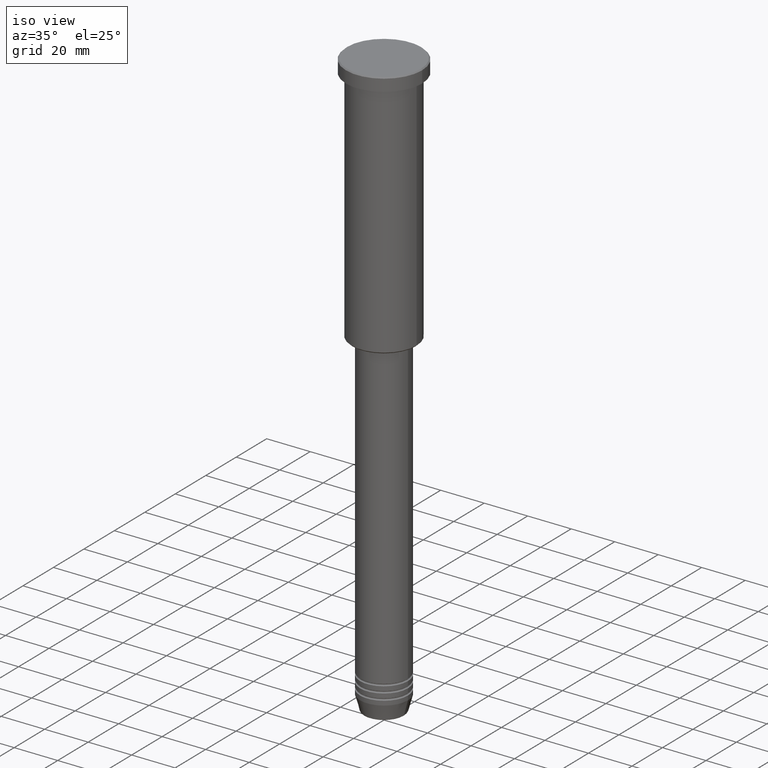
[diagram: clean part render]
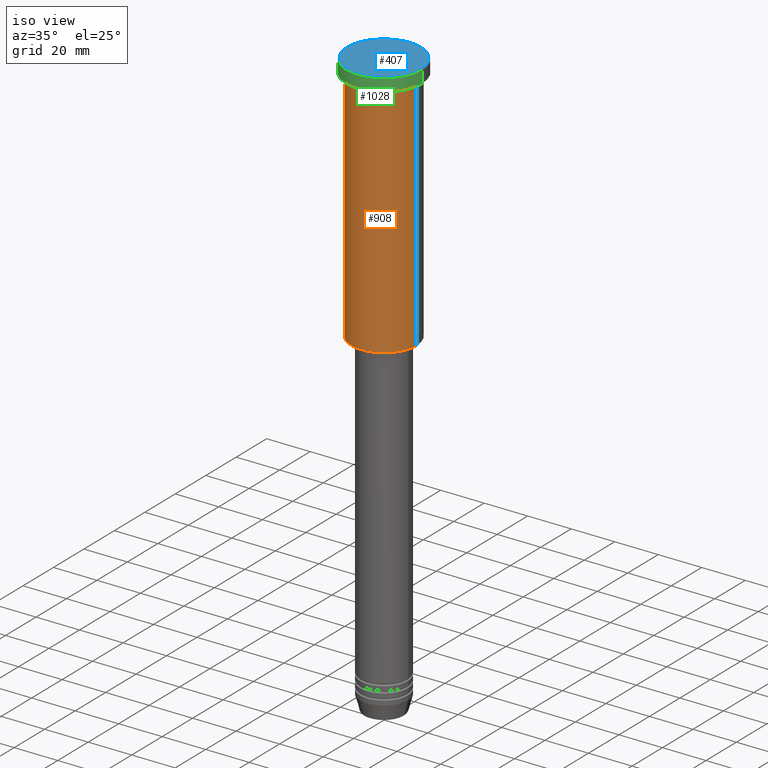
[diagram: same view with three faces highlighted in distinct colors, each labeled with its STEP entity id]
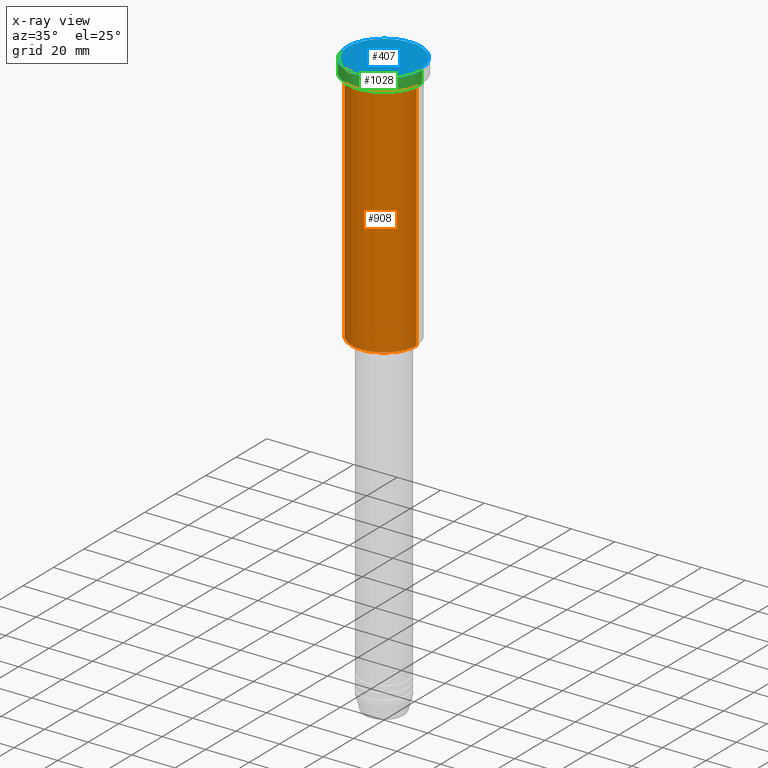
[diagram: x-ray of the same camera — body ghosted, the three highlighted faces saturated]
A machine part, iso view with three faces highlighted in distinct colors.
The next image is the same camera in x-ray (body ghosted, the three faces saturated) — at least one of them is partly hidden behind the body in this view.
Their STEP definitions:

[orange] entity #908 — the highlighted cylindrical surface (partial cylindrical patch) has radius 15 mm, axis along (-0, -0, 1).
#23 = VECTOR ( 'NONE', #1132, 1000.000000000000000 ) ;
#26 = EDGE_CURVE ( 'NONE', #639, #1170, #681, .T. ) ;
#51 = LINE ( 'NONE', #499, #23 ) ;
#58 = VECTOR ( 'NONE', #595, 1000.000000000000000 ) ;
#93 = DIRECTION ( 'NONE',  ( -0.000000000000000000, -0.000000000000000000, 1.000000000000000000 ) ) ;
#111 = CARTESIAN_POINT ( 'NONE',  ( 0.000000000000000000, 0.000000000000000000, 0.000000000000000000 ) ) ;
#138 = CIRCLE ( 'NONE', #992, 15.00000000000000000 ) ;
#172 = DIRECTION ( 'NONE',  ( -1.000000000000000000, 0.000000000000000000, 0.000000000000000000 ) ) ;
#211 = ORIENTED_EDGE ( 'NONE', *, *, #679, .T. ) ;
#221 = ORIENTED_EDGE ( 'NONE', *, *, #26, .T. ) ;
#384 = DIRECTION ( 'NONE',  ( 1.000000000000000000, 0.000000000000000000, 0.000000000000000000 ) ) ;
#412 = CARTESIAN_POINT ( 'NONE',  ( 15.00000000000000000, 0.000000000000000000, -6.999999999999995559 ) ) ;
#424 = AXIS2_PLACEMENT_3D ( 'NONE', #111, #476, #622 ) ;
#457 = DIRECTION ( 'NONE',  ( -0.000000000000000000, -0.000000000000000000, 1.000000000000000000 ) ) ;
#462 = CIRCLE ( 'NONE', #516, 15.00000000000000000 ) ;
#476 = DIRECTION ( 'NONE',  ( -0.000000000000000000, -0.000000000000000000, 1.000000000000000000 ) ) ;
#483 = FACE_OUTER_BOUND ( 'NONE', #769, .T. ) ;
#499 = CARTESIAN_POINT ( 'NONE',  ( -15.00000000000000000, 1.836970198721029589E-15, 0.000000000000000000 ) ) ;
#516 = AXIS2_PLACEMENT_3D ( 'NONE', #553, #457, #172 ) ;
#518 = CARTESIAN_POINT ( 'NONE',  ( 15.00000000000000000, 0.000000000000000000, 0.000000000000000000 ) ) ;
#553 = CARTESIAN_POINT ( 'NONE',  ( 0.000000000000000000, 0.000000000000000000, -115.5000000000000853 ) ) ;
#595 = DIRECTION ( 'NONE',  ( -0.000000000000000000, -0.000000000000000000, 1.000000000000000000 ) ) ;
#601 = ORIENTED_EDGE ( 'NONE', *, *, #1080, .F. ) ;
#622 = DIRECTION ( 'NONE',  ( 1.000000000000000000, 0.000000000000000000, 0.000000000000000000 ) ) ;
#639 = VERTEX_POINT ( 'NONE', #886 ) ;
#646 = CARTESIAN_POINT ( 'NONE',  ( -15.00000000000000000, 1.836970198721029589E-15, -6.999999999999995559 ) ) ;
#679 = EDGE_CURVE ( 'NONE', #832, #639, #462, .T. ) ;
#681 = LINE ( 'NONE', #518, #58 ) ;
#769 = EDGE_LOOP ( 'NONE', ( #837, #211, #221, #601 ) ) ;
#832 = VERTEX_POINT ( 'NONE', #1121 ) ;
#837 = ORIENTED_EDGE ( 'NONE', *, *, #933, .F. ) ;
#838 = CYLINDRICAL_SURFACE ( 'NONE', #424, 15.00000000000000000 ) ;
#886 = CARTESIAN_POINT ( 'NONE',  ( 15.00000000000000000, 0.000000000000000000, -115.5000000000000853 ) ) ;
#887 = VERTEX_POINT ( 'NONE', #646 ) ;
#908 = ADVANCED_FACE ( 'NONE', ( #483 ), #838, .T. ) ;
#913 = CARTESIAN_POINT ( 'NONE',  ( 0.000000000000000000, 0.000000000000000000, -6.999999999999995559 ) ) ;
#933 = EDGE_CURVE ( 'NONE', #832, #887, #51, .T. ) ;
#992 = AXIS2_PLACEMENT_3D ( 'NONE', #913, #93, #384 ) ;
#1080 = EDGE_CURVE ( 'NONE', #887, #1170, #138, .T. ) ;
#1121 = CARTESIAN_POINT ( 'NONE',  ( -15.00000000000000000, 1.836970198721029589E-15, -115.5000000000000853 ) ) ;
#1132 = DIRECTION ( 'NONE',  ( -0.000000000000000000, -0.000000000000000000, 1.000000000000000000 ) ) ;
#1170 = VERTEX_POINT ( 'NONE', #412 ) ;

[blue] entity #407 — the highlighted planar face has unit normal (0, -0, 1).
#27 = CARTESIAN_POINT ( 'NONE',  ( 0.000000000000000000, 0.000000000000000000, 0.000000000000000000 ) ) ;
#35 = EDGE_CURVE ( 'NONE', #188, #667, #254, .T. ) ;
#76 = AXIS2_PLACEMENT_3D ( 'NONE', #27, #398, #748 ) ;
#153 = CARTESIAN_POINT ( 'NONE',  ( 0.000000000000000000, 0.000000000000000000, 0.000000000000000000 ) ) ;
#188 = VERTEX_POINT ( 'NONE', #628 ) ;
#210 = FACE_OUTER_BOUND ( 'NONE', #858, .T. ) ;
#254 = CIRCLE ( 'NONE', #611, 16.99999999999993250 ) ;
#301 = PLANE ( 'NONE',  #650 ) ;
#313 = DIRECTION ( 'NONE',  ( 0.000000000000000000, -0.000000000000000000, 1.000000000000000000 ) ) ;
#398 = DIRECTION ( 'NONE',  ( -0.000000000000000000, -0.000000000000000000, 1.000000000000000000 ) ) ;
#407 = ADVANCED_FACE ( 'NONE', ( #210 ), #301, .T. ) ;
#571 = CARTESIAN_POINT ( 'NONE',  ( 0.000000000000000000, 0.000000000000000000, 0.000000000000000000 ) ) ;
#611 = AXIS2_PLACEMENT_3D ( 'NONE', #153, #1050, #961 ) ;
#628 = CARTESIAN_POINT ( 'NONE',  ( 16.99999999999993250, 2.112515728529180517E-15, 0.000000000000000000 ) ) ;
#629 = CIRCLE ( 'NONE', #76, 16.99999999999993250 ) ;
#635 = CARTESIAN_POINT ( 'NONE',  ( -16.99999999999993250, 0.000000000000000000, 0.000000000000000000 ) ) ;
#650 = AXIS2_PLACEMENT_3D ( 'NONE', #571, #313, #935 ) ;
#653 = ORIENTED_EDGE ( 'NONE', *, *, #871, .T. ) ;
#667 = VERTEX_POINT ( 'NONE', #635 ) ;
#748 = DIRECTION ( 'NONE',  ( 1.000000000000000000, 0.000000000000000000, 0.000000000000000000 ) ) ;
#858 = EDGE_LOOP ( 'NONE', ( #653, #899 ) ) ;
#871 = EDGE_CURVE ( 'NONE', #667, #188, #629, .T. ) ;
#899 = ORIENTED_EDGE ( 'NONE', *, *, #35, .T. ) ;
#935 = DIRECTION ( 'NONE',  ( 1.000000000000000000, 0.000000000000000000, 0.000000000000000000 ) ) ;
#961 = DIRECTION ( 'NONE',  ( 1.000000000000000000, 0.000000000000000000, 0.000000000000000000 ) ) ;
#1050 = DIRECTION ( 'NONE',  ( -0.000000000000000000, -0.000000000000000000, 1.000000000000000000 ) ) ;

[green] entity #1028 — the highlighted cylindrical surface (partial cylindrical patch) has radius 17.5 mm, axis along (-0, -0, 1).
#36 = CARTESIAN_POINT ( 'NONE',  ( 17.50000000000000000, 0.000000000000000000, 0.000000000000000000 ) ) ;
#97 = AXIS2_PLACEMENT_3D ( 'NONE', #509, #860, #1151 ) ;
#105 = LINE ( 'NONE', #36, #403 ) ;
#150 = ORIENTED_EDGE ( 'NONE', *, *, #782, .F. ) ;
#160 = CARTESIAN_POINT ( 'NONE',  ( 17.50000000000000000, 0.000000000000000000, -0.5000000000000837108 ) ) ;
#199 = DIRECTION ( 'NONE',  ( -0.000000000000000000, -0.000000000000000000, 1.000000000000000000 ) ) ;
#212 = CARTESIAN_POINT ( 'NONE',  ( -17.50000000000000000, 2.143131898507868248E-15, -0.5000000000000837108 ) ) ;
#264 = ORIENTED_EDGE ( 'NONE', *, *, #854, .T. ) ;
#265 = DIRECTION ( 'NONE',  ( -0.000000000000000000, -0.000000000000000000, 1.000000000000000000 ) ) ;
#296 = DIRECTION ( 'NONE',  ( -0.000000000000000000, -0.000000000000000000, 1.000000000000000000 ) ) ;
#364 = VECTOR ( 'NONE', #199, 1000.000000000000000 ) ;
#403 = VECTOR ( 'NONE', #1011, 1000.000000000000000 ) ;
#471 = CARTESIAN_POINT ( 'NONE',  ( 0.000000000000000000, 0.000000000000000000, -5.999999999999995559 ) ) ;
#492 = LINE ( 'NONE', #736, #364 ) ;
#497 = VERTEX_POINT ( 'NONE', #160 ) ;
#509 = CARTESIAN_POINT ( 'NONE',  ( 0.000000000000000000, 0.000000000000000000, -0.5000000000000837108 ) ) ;
#517 = AXIS2_PLACEMENT_3D ( 'NONE', #471, #296, #1031 ) ;
#585 = DIRECTION ( 'NONE',  ( 1.000000000000000000, 0.000000000000000000, 0.000000000000000000 ) ) ;
#588 = ORIENTED_EDGE ( 'NONE', *, *, #888, .T. ) ;
#669 = CIRCLE ( 'NONE', #97, 17.50000000000000000 ) ;
#736 = CARTESIAN_POINT ( 'NONE',  ( -17.50000000000000000, 2.143131898507868248E-15, 0.000000000000000000 ) ) ;
#780 = FACE_OUTER_BOUND ( 'NONE', #1084, .T. ) ;
#782 = EDGE_CURVE ( 'NONE', #925, #1174, #492, .T. ) ;
#800 = VERTEX_POINT ( 'NONE', #850 ) ;
#850 = CARTESIAN_POINT ( 'NONE',  ( 17.50000000000000000, 0.000000000000000000, -5.999999999999995559 ) ) ;
#854 = EDGE_CURVE ( 'NONE', #925, #800, #1148, .T. ) ;
#860 = DIRECTION ( 'NONE',  ( 0.000000000000000000, 0.000000000000000000, -1.000000000000000000 ) ) ;
#888 = EDGE_CURVE ( 'NONE', #800, #497, #105, .T. ) ;
#925 = VERTEX_POINT ( 'NONE', #962 ) ;
#951 = EDGE_CURVE ( 'NONE', #497, #1174, #669, .T. ) ;
#956 = AXIS2_PLACEMENT_3D ( 'NONE', #1077, #265, #585 ) ;
#962 = CARTESIAN_POINT ( 'NONE',  ( -17.50000000000000000, 2.143131898507868248E-15, -5.999999999999995559 ) ) ;
#1011 = DIRECTION ( 'NONE',  ( -0.000000000000000000, -0.000000000000000000, 1.000000000000000000 ) ) ;
#1028 = ADVANCED_FACE ( 'NONE', ( #780 ), #1172, .T. ) ;
#1031 = DIRECTION ( 'NONE',  ( 1.000000000000000000, 0.000000000000000000, 0.000000000000000000 ) ) ;
#1042 = ORIENTED_EDGE ( 'NONE', *, *, #951, .T. ) ;
#1077 = CARTESIAN_POINT ( 'NONE',  ( 0.000000000000000000, 0.000000000000000000, 0.000000000000000000 ) ) ;
#1084 = EDGE_LOOP ( 'NONE', ( #150, #264, #588, #1042 ) ) ;
#1148 = CIRCLE ( 'NONE', #517, 17.50000000000000000 ) ;
#1151 = DIRECTION ( 'NONE',  ( 1.000000000000000000, 0.000000000000000000, 0.000000000000000000 ) ) ;
#1172 = CYLINDRICAL_SURFACE ( 'NONE', #956, 17.50000000000000000 ) ;
#1174 = VERTEX_POINT ( 'NONE', #212 ) ;